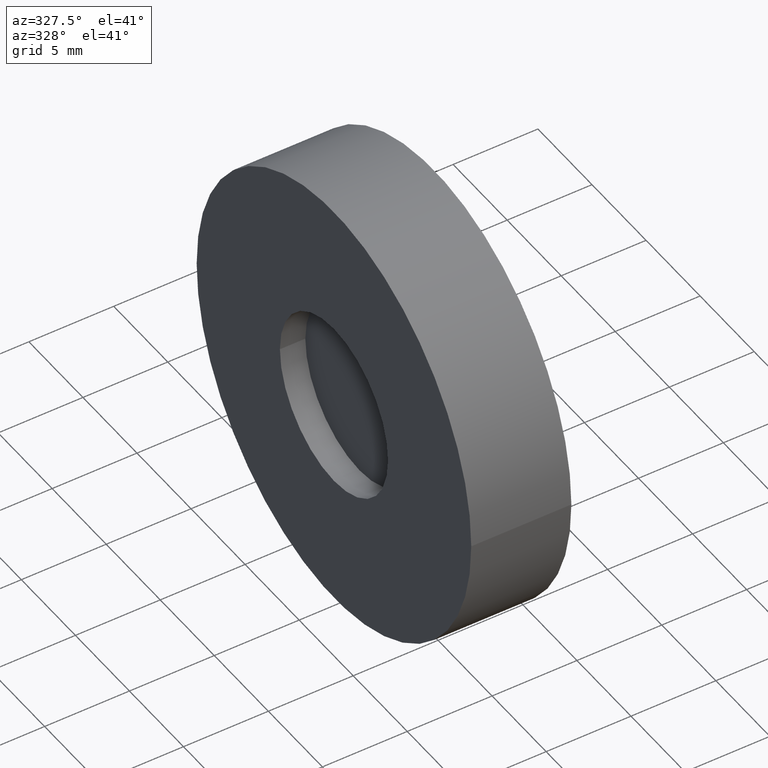
[diagram: clean part render]
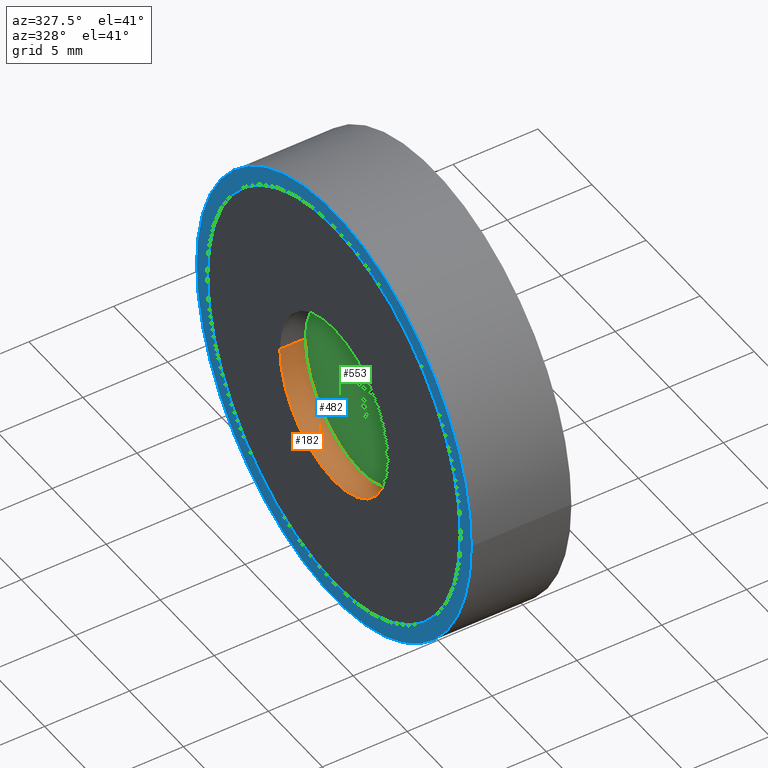
[diagram: same view with three faces highlighted in distinct colors, each labeled with its STEP entity id]
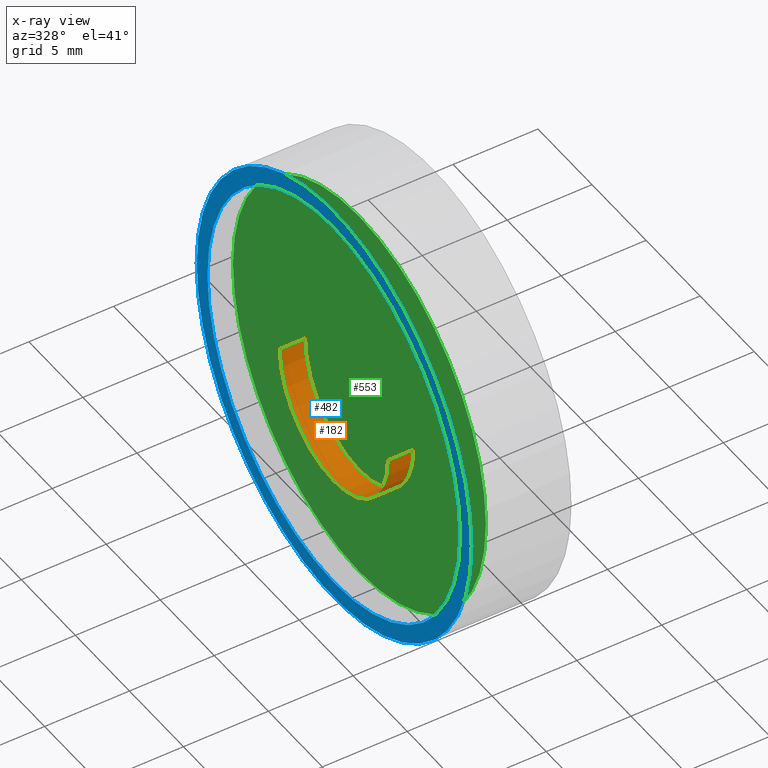
[diagram: x-ray of the same camera — body ghosted, the three highlighted faces saturated]
A machine part, auxiliary view with three faces highlighted in distinct colors.
The next image is the same camera in x-ray (body ghosted, the three faces saturated) — at least one of them is partly hidden behind the body in this view.
Their STEP definitions:

[orange] entity #182 — the highlighted cylindrical surface (partial cylindrical patch) has radius 5 mm, axis along (1, 0, 0).
#2 = DIRECTION ( 'NONE',  ( 1.000000000000000000, 0.000000000000000000, 0.000000000000000000 ) ) ;
#21 = EDGE_CURVE ( 'NONE', #326, #593, #375, .T. ) ;
#31 = DIRECTION ( 'NONE',  ( 1.000000000000000000, 0.000000000000000000, 0.000000000000000000 ) ) ;
#40 = EDGE_CURVE ( 'NONE', #479, #326, #233, .T. ) ;
#64 = EDGE_CURVE ( 'NONE', #122, #593, #535, .T. ) ;
#69 = DIRECTION ( 'NONE',  ( 1.000000000000000000, 0.000000000000000000, 0.000000000000000000 ) ) ;
#81 = ORIENTED_EDGE ( 'NONE', *, *, #40, .T. ) ;
#87 = CYLINDRICAL_SURFACE ( 'NONE', #150, 5.000000000000000000 ) ;
#120 = ORIENTED_EDGE ( 'NONE', *, *, #259, .F. ) ;
#122 = VERTEX_POINT ( 'NONE', #346 ) ;
#150 = AXIS2_PLACEMENT_3D ( 'NONE', #598, #31, #332 ) ;
#169 = ORIENTED_EDGE ( 'NONE', *, *, #64, .F. ) ;
#175 = CARTESIAN_POINT ( 'NONE',  ( -2.200000000000000178, -5.000000000000000000, 6.123233995736771213E-16 ) ) ;
#178 = DIRECTION ( 'NONE',  ( 1.000000000000000000, 0.000000000000000000, 0.000000000000000000 ) ) ;
#182 = ADVANCED_FACE ( 'NONE', ( #187 ), #87, .F. ) ;
#187 = FACE_OUTER_BOUND ( 'NONE', #601, .T. ) ;
#207 = CARTESIAN_POINT ( 'NONE',  ( -2.949999999999999734, -5.000000000000000000, 6.123233995736771213E-16 ) ) ;
#215 = CARTESIAN_POINT ( 'NONE',  ( -2.949999999999999734, 0.000000000000000000, 0.000000000000000000 ) ) ;
#233 = LINE ( 'NONE', #175, #587 ) ;
#259 = EDGE_CURVE ( 'NONE', #479, #122, #351, .T. ) ;
#271 = DIRECTION ( 'NONE',  ( 0.000000000000000000, 0.000000000000000000, -1.000000000000000000 ) ) ;
#316 = AXIS2_PLACEMENT_3D ( 'NONE', #215, #2, #519 ) ;
#326 = VERTEX_POINT ( 'NONE', #671 ) ;
#332 = DIRECTION ( 'NONE',  ( 0.000000000000000000, 1.000000000000000000, 0.000000000000000000 ) ) ;
#346 = CARTESIAN_POINT ( 'NONE',  ( -2.949999999999999734, 5.000000000000000000, 0.000000000000000000 ) ) ;
#351 = CIRCLE ( 'NONE', #316, 5.000000000000000000 ) ;
#375 = CIRCLE ( 'NONE', #576, 5.000000000000000000 ) ;
#382 = CARTESIAN_POINT ( 'NONE',  ( -1.449999999999999956, 0.000000000000000000, 0.000000000000000000 ) ) ;
#398 = DIRECTION ( 'NONE',  ( 1.000000000000000000, 0.000000000000000000, 0.000000000000000000 ) ) ;
#428 = VECTOR ( 'NONE', #178, 1000.000000000000000 ) ;
#457 = ORIENTED_EDGE ( 'NONE', *, *, #21, .T. ) ;
#479 = VERTEX_POINT ( 'NONE', #207 ) ;
#518 = CARTESIAN_POINT ( 'NONE',  ( -1.449999999999999956, 5.000000000000000000, 0.000000000000000000 ) ) ;
#519 = DIRECTION ( 'NONE',  ( 0.000000000000000000, 0.000000000000000000, -1.000000000000000000 ) ) ;
#535 = LINE ( 'NONE', #650, #428 ) ;
#576 = AXIS2_PLACEMENT_3D ( 'NONE', #382, #69, #271 ) ;
#587 = VECTOR ( 'NONE', #398, 1000.000000000000000 ) ;
#593 = VERTEX_POINT ( 'NONE', #518 ) ;
#598 = CARTESIAN_POINT ( 'NONE',  ( -2.200000000000000178, 0.000000000000000000, 0.000000000000000000 ) ) ;
#601 = EDGE_LOOP ( 'NONE', ( #120, #81, #457, #169 ) ) ;
#650 = CARTESIAN_POINT ( 'NONE',  ( -2.200000000000000178, 5.000000000000000000, 0.000000000000000000 ) ) ;
#671 = CARTESIAN_POINT ( 'NONE',  ( -1.449999999999999956, -5.000000000000000000, 6.123233995736771213E-16 ) ) ;

[blue] entity #482 — the highlighted planar face has unit normal (-1, 0, 0).
#13 = VERTEX_POINT ( 'NONE', #329 ) ;
#38 = DIRECTION ( 'NONE',  ( 1.000000000000000000, 0.000000000000000000, 0.000000000000000000 ) ) ;
#51 = DIRECTION ( 'NONE',  ( 1.000000000000000000, 0.000000000000000000, 0.000000000000000000 ) ) ;
#52 = DIRECTION ( 'NONE',  ( 1.000000000000000000, 0.000000000000000000, 0.000000000000000000 ) ) ;
#54 = AXIS2_PLACEMENT_3D ( 'NONE', #355, #301, #577 ) ;
#66 = ORIENTED_EDGE ( 'NONE', *, *, #498, .T. ) ;
#88 = CIRCLE ( 'NONE', #260, 11.70000000000000107 ) ;
#109 = DIRECTION ( 'NONE',  ( 0.000000000000000000, 0.000000000000000000, -1.000000000000000000 ) ) ;
#149 = DIRECTION ( 'NONE',  ( 0.000000000000000000, 0.000000000000000000, -1.000000000000000000 ) ) ;
#152 = CARTESIAN_POINT ( 'NONE',  ( -2.949999999999999734, -11.70000000000000107, 1.432836755002401904E-15 ) ) ;
#157 = DIRECTION ( 'NONE',  ( -1.000000000000000000, 0.000000000000000000, 0.000000000000000000 ) ) ;
#164 = CIRCLE ( 'NONE', #54, 12.69999999999999929 ) ;
#218 = VERTEX_POINT ( 'NONE', #545 ) ;
#240 = FACE_OUTER_BOUND ( 'NONE', #267, .T. ) ;
#251 = CARTESIAN_POINT ( 'NONE',  ( -2.949999999999999734, -12.69999999999999929, 1.555301434917139813E-15 ) ) ;
#254 = ORIENTED_EDGE ( 'NONE', *, *, #433, .F. ) ;
#260 = AXIS2_PLACEMENT_3D ( 'NONE', #513, #51, #109 ) ;
#261 = DIRECTION ( 'NONE',  ( 0.000000000000000000, 0.000000000000000000, -1.000000000000000000 ) ) ;
#267 = EDGE_LOOP ( 'NONE', ( #254, #544 ) ) ;
#282 = CIRCLE ( 'NONE', #612, 12.69999999999999929 ) ;
#300 = CARTESIAN_POINT ( 'NONE',  ( -2.949999999999999734, 0.000000000000000000, 0.000000000000000000 ) ) ;
#301 = DIRECTION ( 'NONE',  ( 1.000000000000000000, 0.000000000000000000, 0.000000000000000000 ) ) ;
#329 = CARTESIAN_POINT ( 'NONE',  ( -2.949999999999999734, 12.69999999999999929, 0.000000000000000000 ) ) ;
#355 = CARTESIAN_POINT ( 'NONE',  ( -2.949999999999999734, 0.000000000000000000, 0.000000000000000000 ) ) ;
#358 = DIRECTION ( 'NONE',  ( 0.000000000000000000, 0.000000000000000000, 1.000000000000000000 ) ) ;
#366 = CARTESIAN_POINT ( 'NONE',  ( -2.949999999999999734, 0.000000000000000000, 0.000000000000000000 ) ) ;
#412 = FACE_BOUND ( 'NONE', #633, .T. ) ;
#422 = VERTEX_POINT ( 'NONE', #251 ) ;
#433 = EDGE_CURVE ( 'NONE', #13, #422, #282, .T. ) ;
#482 = ADVANCED_FACE ( 'NONE', ( #412, #240 ), #619, .T. ) ;
#490 = VERTEX_POINT ( 'NONE', #152 ) ;
#498 = EDGE_CURVE ( 'NONE', #490, #218, #88, .T. ) ;
#513 = CARTESIAN_POINT ( 'NONE',  ( -2.949999999999999734, 0.000000000000000000, 0.000000000000000000 ) ) ;
#516 = AXIS2_PLACEMENT_3D ( 'NONE', #366, #52, #261 ) ;
#538 = ORIENTED_EDGE ( 'NONE', *, *, #631, .T. ) ;
#544 = ORIENTED_EDGE ( 'NONE', *, *, #644, .F. ) ;
#545 = CARTESIAN_POINT ( 'NONE',  ( -2.949999999999999734, 11.70000000000000107, 0.000000000000000000 ) ) ;
#577 = DIRECTION ( 'NONE',  ( 0.000000000000000000, 0.000000000000000000, -1.000000000000000000 ) ) ;
#603 = CIRCLE ( 'NONE', #516, 11.70000000000000107 ) ;
#612 = AXIS2_PLACEMENT_3D ( 'NONE', #300, #38, #149 ) ;
#619 = PLANE ( 'NONE',  #665 ) ;
#624 = CARTESIAN_POINT ( 'NONE',  ( -2.949999999999999734, 12.69999999999999929, 0.000000000000000000 ) ) ;
#631 = EDGE_CURVE ( 'NONE', #218, #490, #603, .T. ) ;
#633 = EDGE_LOOP ( 'NONE', ( #538, #66 ) ) ;
#644 = EDGE_CURVE ( 'NONE', #422, #13, #164, .T. ) ;
#665 = AXIS2_PLACEMENT_3D ( 'NONE', #624, #157, #358 ) ;

[green] entity #553 — the highlighted planar face has unit normal (-1, 0, 0).
#1 = DIRECTION ( 'NONE',  ( 0.000000000000000000, 0.000000000000000000, 1.000000000000000000 ) ) ;
#29 = VERTEX_POINT ( 'NONE', #325 ) ;
#106 = CARTESIAN_POINT ( 'NONE',  ( -1.449999999999999956, -11.70000000000000107, 1.432836755002401904E-15 ) ) ;
#134 = CARTESIAN_POINT ( 'NONE',  ( -1.449999999999999956, 0.000000000000000000, 0.000000000000000000 ) ) ;
#148 = EDGE_CURVE ( 'NONE', #29, #492, #637, .T. ) ;
#162 = FACE_OUTER_BOUND ( 'NONE', #373, .T. ) ;
#203 = DIRECTION ( 'NONE',  ( 1.000000000000000000, 0.000000000000000000, 0.000000000000000000 ) ) ;
#325 = CARTESIAN_POINT ( 'NONE',  ( -1.449999999999999956, 11.70000000000000107, 0.000000000000000000 ) ) ;
#354 = DIRECTION ( 'NONE',  ( 0.000000000000000000, 0.000000000000000000, -1.000000000000000000 ) ) ;
#368 = AXIS2_PLACEMENT_3D ( 'NONE', #406, #203, #354 ) ;
#373 = EDGE_LOOP ( 'NONE', ( #642, #389 ) ) ;
#389 = ORIENTED_EDGE ( 'NONE', *, *, #473, .F. ) ;
#406 = CARTESIAN_POINT ( 'NONE',  ( -1.449999999999999956, 0.000000000000000000, 0.000000000000000000 ) ) ;
#408 = AXIS2_PLACEMENT_3D ( 'NONE', #134, #445, #499 ) ;
#445 = DIRECTION ( 'NONE',  ( 1.000000000000000000, 0.000000000000000000, 0.000000000000000000 ) ) ;
#460 = PLANE ( 'NONE',  #521 ) ;
#468 = DIRECTION ( 'NONE',  ( -1.000000000000000000, 0.000000000000000000, 0.000000000000000000 ) ) ;
#473 = EDGE_CURVE ( 'NONE', #492, #29, #487, .T. ) ;
#487 = CIRCLE ( 'NONE', #368, 11.70000000000000107 ) ;
#492 = VERTEX_POINT ( 'NONE', #106 ) ;
#499 = DIRECTION ( 'NONE',  ( 0.000000000000000000, 0.000000000000000000, -1.000000000000000000 ) ) ;
#521 = AXIS2_PLACEMENT_3D ( 'NONE', #564, #468, #1 ) ;
#553 = ADVANCED_FACE ( 'NONE', ( #162 ), #460, .T. ) ;
#564 = CARTESIAN_POINT ( 'NONE',  ( -1.449999999999999956, 11.70000000000000107, 0.000000000000000000 ) ) ;
#637 = CIRCLE ( 'NONE', #408, 11.70000000000000107 ) ;
#642 = ORIENTED_EDGE ( 'NONE', *, *, #148, .F. ) ;